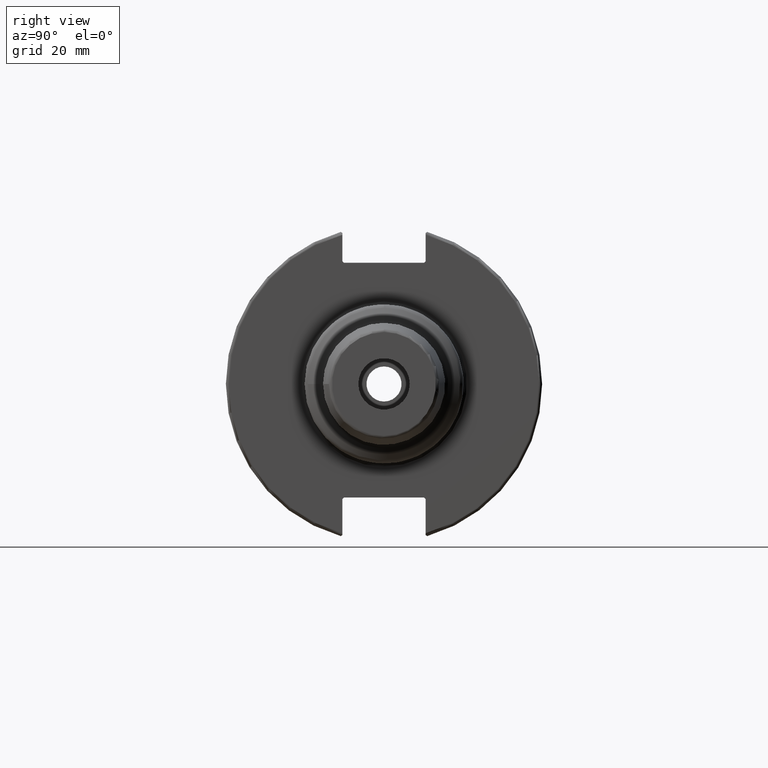
[diagram: clean part render]
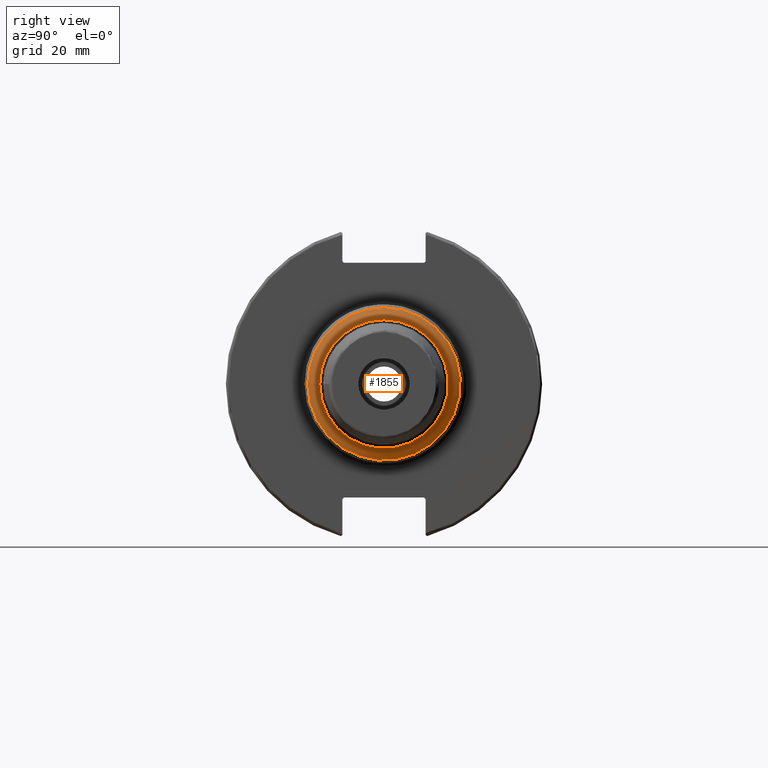
[diagram: same view with one face highlighted and labeled with its STEP entity id]
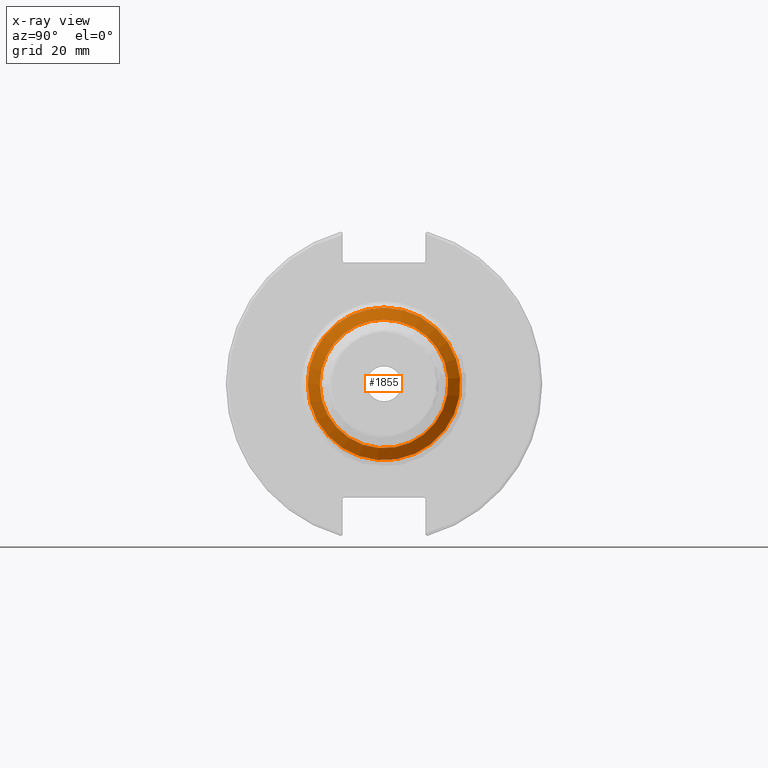
[diagram: x-ray of the same camera — body ghosted, the highlighted face saturated]
A machine part, right view. The second image highlights one B-rep face of the part: STEP entity #1855.
The next image is the same camera in x-ray: the body ghosted, the highlighted face saturated — about 0% of this face is hidden behind the body in this view.
In plain terms, the highlighted conical surface has half-angle 60 deg.
Its self-contained STEP definition (entity closure, byte-faithful):
#153=CONICAL_SURFACE('',#2040,21.875,1.0471975511966);
#189=FACE_OUTER_BOUND('',#299,.T.);
#299=EDGE_LOOP('',(#1355,#1356,#1357,#1358,#1359,#1360));
#416=LINE('',#3001,#520);
#520=VECTOR('',#2374,21.875);
#661=CIRCLE('',#2037,20.);
#663=CIRCLE('',#2039,20.);
#664=CIRCLE('',#2041,23.75);
#665=CIRCLE('',#2042,23.75);
#786=VERTEX_POINT('',#2994);
#787=VERTEX_POINT('',#2995);
#788=VERTEX_POINT('',#3000);
#789=VERTEX_POINT('',#3002);
#1001=EDGE_CURVE('',#786,#787,#661,.T.);
#1003=EDGE_CURVE('',#787,#786,#663,.T.);
#1004=EDGE_CURVE('',#786,#788,#416,.T.);
#1005=EDGE_CURVE('',#789,#788,#664,.T.);
#1006=EDGE_CURVE('',#788,#789,#665,.T.);
#1355=ORIENTED_EDGE('',*,*,#1001,.F.);
#1356=ORIENTED_EDGE('',*,*,#1004,.T.);
#1357=ORIENTED_EDGE('',*,*,#1005,.F.);
#1358=ORIENTED_EDGE('',*,*,#1006,.F.);
#1359=ORIENTED_EDGE('',*,*,#1004,.F.);
#1360=ORIENTED_EDGE('',*,*,#1003,.F.);
#1855=ADVANCED_FACE('',(#189),#153,.T.);
#2037=AXIS2_PLACEMENT_3D('',#2996,#2366,#2367);
#2039=AXIS2_PLACEMENT_3D('',#2998,#2370,#2371);
#2040=AXIS2_PLACEMENT_3D('',#2999,#2372,#2373);
#2041=AXIS2_PLACEMENT_3D('',#3003,#2375,#2376);
#2042=AXIS2_PLACEMENT_3D('',#3004,#2377,#2378);
#2366=DIRECTION('center_axis',(1.,0.,0.));
#2367=DIRECTION('ref_axis',(0.,-1.,3.06161699786838E-17));
#2370=DIRECTION('center_axis',(1.,0.,0.));
#2371=DIRECTION('ref_axis',(0.,-1.,3.06161699786838E-17));
#2372=DIRECTION('center_axis',(-1.,0.,0.));
#2373=DIRECTION('ref_axis',(0.,1.,0.));
#2374=DIRECTION('',(-0.5,-0.866025403784438,-1.06057523872491E-16));
#2375=DIRECTION('center_axis',(-1.,0.,0.));
#2376=DIRECTION('ref_axis',(0.,-1.,3.06161699786838E-17));
#2377=DIRECTION('center_axis',(-1.,0.,0.));
#2378=DIRECTION('ref_axis',(0.,-1.,3.06161699786838E-17));
#2994=CARTESIAN_POINT('',(39.9226497308104,-20.,-2.44929359829471E-15));
#2995=CARTESIAN_POINT('',(39.9226497308104,-2.44929359829471E-15,20.));
#2996=CARTESIAN_POINT('Origin',(39.9226497308104,0.,-3.06161699786838E-15));
#2998=CARTESIAN_POINT('Origin',(39.9226497308104,0.,-3.06161699786838E-15));
#2999=CARTESIAN_POINT('Origin',(38.8401179760798,0.,0.));
#3000=CARTESIAN_POINT('',(37.7575862213493,-23.75,-2.90853614797496E-15));
#3001=CARTESIAN_POINT('',(38.8401179760798,-21.875,-2.67891487313484E-15));
#3002=CARTESIAN_POINT('',(37.7575862213493,-2.90853614797496E-15,23.75));
#3003=CARTESIAN_POINT('Origin',(37.7575862213493,0.,-3.6356701849687E-15));
#3004=CARTESIAN_POINT('Origin',(37.7575862213493,0.,-3.6356701849687E-15));